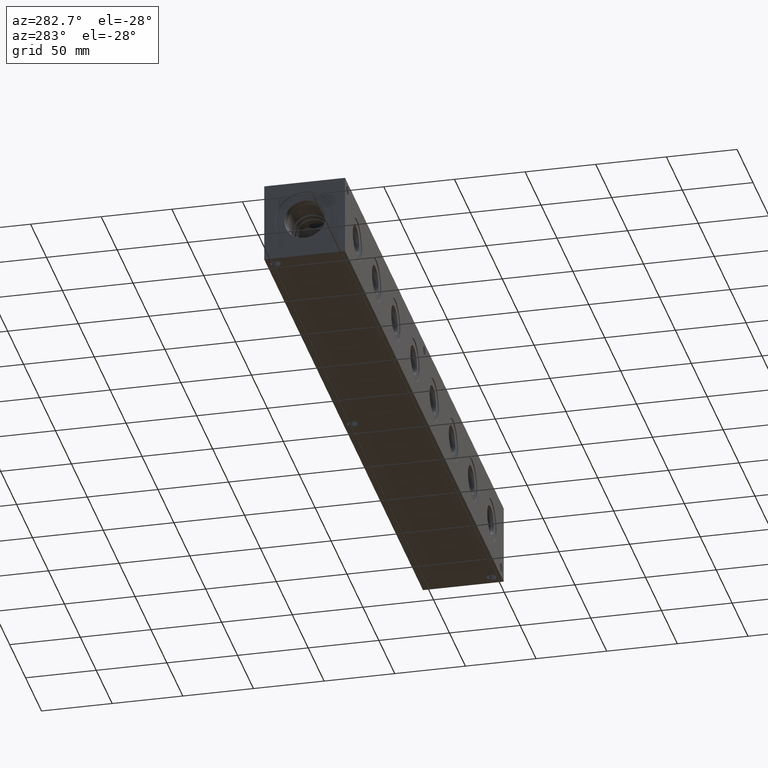
[diagram: clean part render]
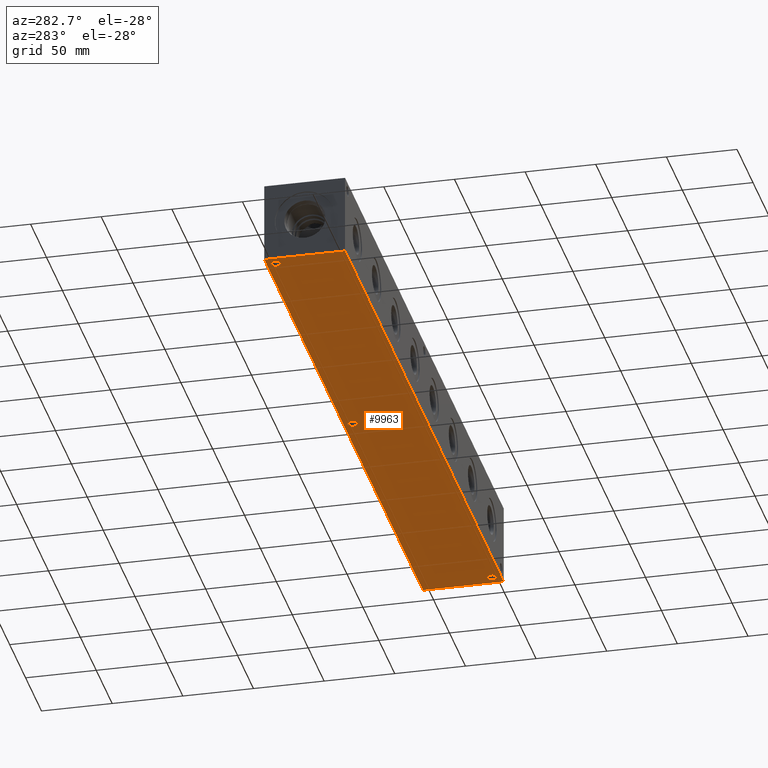
[diagram: same view with one face highlighted and labeled with its STEP entity id]
A machine part, auxiliary view. The second image highlights one B-rep face of the part: STEP entity #9963.
In plain terms, the highlighted planar face has unit normal (0, 0, 1).
Its self-contained STEP definition (entity closure, byte-faithful):
#342=CIRCLE('',#10430,3.5687);
#343=CIRCLE('',#10432,3.5687);
#344=CIRCLE('',#10434,3.5687);
#604=FACE_BOUND('',#1975,.T.);
#605=FACE_BOUND('',#1976,.T.);
#606=FACE_BOUND('',#1977,.T.);
#842=PLANE('',#10709);
#1361=FACE_OUTER_BOUND('',#1974,.T.);
#1974=EDGE_LOOP('',(#8997,#8998,#8999,#9000));
#1975=EDGE_LOOP('',(#9001));
#1976=EDGE_LOOP('',(#9002));
#1977=EDGE_LOOP('',(#9003));
#2754=LINE('',#17626,#3538);
#2757=LINE('',#17631,#3541);
#2759=LINE('',#17635,#3543);
#2761=LINE('',#17638,#3545);
#3538=VECTOR('',#12942,10.);
#3541=VECTOR('',#12947,10.);
#3543=VECTOR('',#12951,10.);
#3545=VECTOR('',#12955,10.);
#4607=VERTEX_POINT('',#17065);
#4608=VERTEX_POINT('',#17069);
#4609=VERTEX_POINT('',#17073);
#4782=VERTEX_POINT('',#17624);
#4783=VERTEX_POINT('',#17625);
#4784=VERTEX_POINT('',#17630);
#4785=VERTEX_POINT('',#17634);
#5927=EDGE_CURVE('',#4607,#4607,#342,.T.);
#5929=EDGE_CURVE('',#4608,#4608,#343,.T.);
#5931=EDGE_CURVE('',#4609,#4609,#344,.T.);
#6184=EDGE_CURVE('',#4782,#4783,#2754,.T.);
#6187=EDGE_CURVE('',#4784,#4782,#2757,.T.);
#6189=EDGE_CURVE('',#4785,#4784,#2759,.T.);
#6191=EDGE_CURVE('',#4783,#4785,#2761,.T.);
#8997=ORIENTED_EDGE('',*,*,#6191,.F.);
#8998=ORIENTED_EDGE('',*,*,#6184,.F.);
#8999=ORIENTED_EDGE('',*,*,#6187,.F.);
#9000=ORIENTED_EDGE('',*,*,#6189,.F.);
#9001=ORIENTED_EDGE('',*,*,#5927,.T.);
#9002=ORIENTED_EDGE('',*,*,#5929,.T.);
#9003=ORIENTED_EDGE('',*,*,#5931,.T.);
#9963=ADVANCED_FACE('',(#1361,#604,#605,#606),#842,.F.);
#10430=AXIS2_PLACEMENT_3D('',#17067,#12306,#12307);
#10432=AXIS2_PLACEMENT_3D('',#17071,#12311,#12312);
#10434=AXIS2_PLACEMENT_3D('',#17075,#12316,#12317);
#10709=AXIS2_PLACEMENT_3D('',#17640,#12958,#12959);
#12306=DIRECTION('center_axis',(0.,0.,1.));
#12307=DIRECTION('ref_axis',(1.,0.,0.));
#12311=DIRECTION('center_axis',(0.,0.,1.));
#12312=DIRECTION('ref_axis',(1.,0.,0.));
#12316=DIRECTION('center_axis',(0.,0.,1.));
#12317=DIRECTION('ref_axis',(1.,0.,0.));
#12942=DIRECTION('',(0.,-1.,0.));
#12947=DIRECTION('',(-1.,0.,0.));
#12951=DIRECTION('',(0.,1.,0.));
#12955=DIRECTION('',(1.,0.,0.));
#12958=DIRECTION('center_axis',(0.,0.,1.));
#12959=DIRECTION('ref_axis',(1.,0.,0.));
#17065=CARTESIAN_POINT('',(486.9561,6.35,0.));
#17067=CARTESIAN_POINT('Origin',(490.5248,6.35,0.));
#17069=CARTESIAN_POINT('',(4.3561,50.8,0.));
#17071=CARTESIAN_POINT('Origin',(7.9248,50.8,0.));
#17073=CARTESIAN_POINT('',(245.6561,50.8,0.));
#17075=CARTESIAN_POINT('Origin',(249.2248,50.8,0.));
#17624=CARTESIAN_POINT('',(0.,57.15,0.));
#17625=CARTESIAN_POINT('',(0.,0.,0.));
#17626=CARTESIAN_POINT('',(0.,57.15,0.));
#17630=CARTESIAN_POINT('',(498.475,57.15,0.));
#17631=CARTESIAN_POINT('',(498.475,57.15,0.));
#17634=CARTESIAN_POINT('',(498.475,0.,0.));
#17635=CARTESIAN_POINT('',(498.475,0.,0.));
#17638=CARTESIAN_POINT('',(0.,0.,0.));
#17640=CARTESIAN_POINT('Origin',(249.2375,28.575,0.));